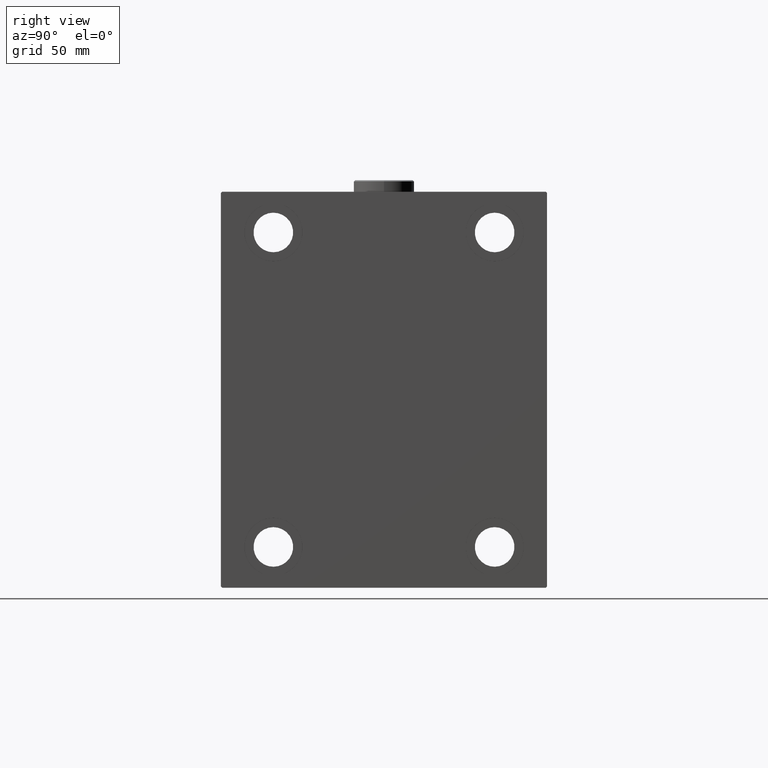
[diagram: clean part render]
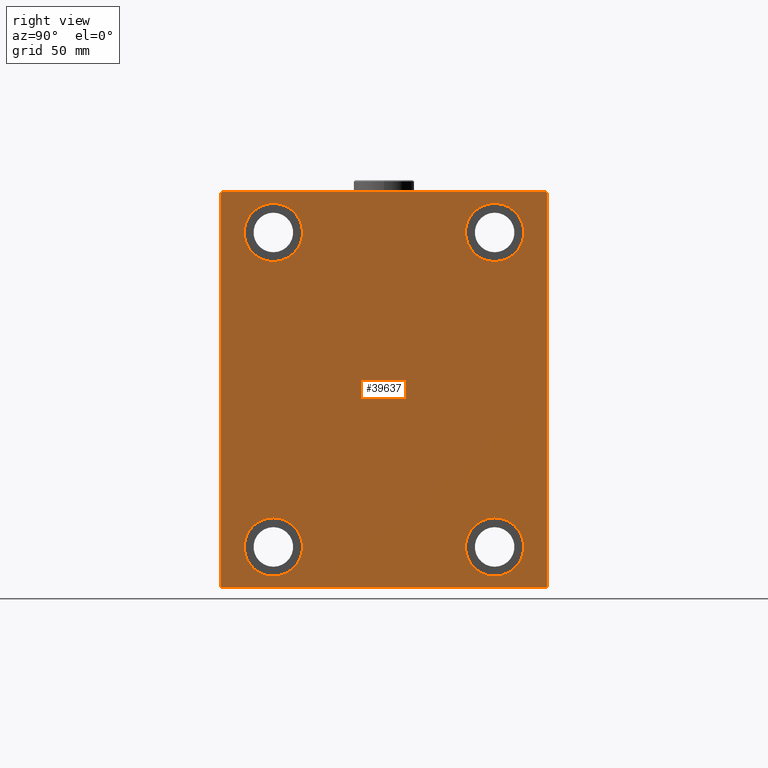
[diagram: same view with one face highlighted and labeled with its STEP entity id]
A machine part, right view. The second image highlights one B-rep face of the part: STEP entity #39637.
In plain terms, the highlighted planar face has unit normal (1, 0, 0).
Its self-contained STEP definition (entity closure, byte-faithful):
#452 = CARTESIAN_POINT ( 'NONE',  ( 205.0000000000000000, -47.49999999999997868, 55.00000000000000000 ) ) ;
#487 = VERTEX_POINT ( 'NONE', #3035 ) ;
#490 = CIRCLE ( 'NONE', #16582, 12.50000000000001066 ) ;
#533 = EDGE_CURVE ( 'NONE', #24624, #34609, #39510, .T. ) ;
#894 = LINE ( 'NONE', #1114, #36700 ) ;
#1114 = CARTESIAN_POINT ( 'NONE',  ( 205.0000000000000000, -77.25000000000292744, -77.24999999999650413 ) ) ;
#2462 = ORIENTED_EDGE ( 'NONE', *, *, #8759, .T. ) ;
#2726 = DIRECTION ( 'NONE',  ( -0.000000000000000000, -0.7071067811865376918, 0.7071067811865573427 ) ) ;
#3035 = CARTESIAN_POINT ( 'NONE',  ( 205.0000000000000000, -69.99999999999998579, -84.50000000000001421 ) ) ;
#3592 = CARTESIAN_POINT ( 'NONE',  ( 205.0000000000000000, -47.49999999999999289, -80.00000000000000000 ) ) ;
#3703 = DIRECTION ( 'NONE',  ( -1.000000000000000000, -0.000000000000000000, -0.000000000000000000 ) ) ;
#3973 = PLANE ( 'NONE',  #34445 ) ;
#4105 = CARTESIAN_POINT ( 'NONE',  ( 205.0000000000000000, 47.50000000000000711, -80.00000000000000000 ) ) ;
#4211 = ORIENTED_EDGE ( 'NONE', *, *, #28695, .T. ) ;
#4240 = EDGE_LOOP ( 'NONE', ( #34144, #10077 ) ) ;
#4858 = ORIENTED_EDGE ( 'NONE', *, *, #38573, .T. ) ;
#5338 = DIRECTION ( 'NONE',  ( -1.000000000000000000, -0.000000000000000000, -0.000000000000000000 ) ) ;
#5383 = VERTEX_POINT ( 'NONE', #31734 ) ;
#5625 = ORIENTED_EDGE ( 'NONE', *, *, #19336, .T. ) ;
#5680 = DIRECTION ( 'NONE',  ( -1.000000000000000000, -0.000000000000000000, -0.000000000000000000 ) ) ;
#6389 = DIRECTION ( 'NONE',  ( 0.000000000000000000, 0.000000000000000000, 1.000000000000000000 ) ) ;
#6583 = VERTEX_POINT ( 'NONE', #19487 ) ;
#6973 = DIRECTION ( 'NONE',  ( 0.000000000000000000, 0.000000000000000000, -1.000000000000000000 ) ) ;
#7817 = AXIS2_PLACEMENT_3D ( 'NONE', #11376, #11161, #21686 ) ;
#8574 = CARTESIAN_POINT ( 'NONE',  ( 205.0000000000000000, -69.99999999999998579, 84.49999999999998579 ) ) ;
#8729 = LINE ( 'NONE', #15613, #33597 ) ;
#8759 = EDGE_CURVE ( 'NONE', #487, #26874, #894, .T. ) ;
#9268 = CARTESIAN_POINT ( 'NONE',  ( 205.0000000000000000, -69.50000000000001421, -85.00000000000002842 ) ) ;
#9465 = VERTEX_POINT ( 'NONE', #452 ) ;
#10077 = ORIENTED_EDGE ( 'NONE', *, *, #36131, .T. ) ;
#10230 = ORIENTED_EDGE ( 'NONE', *, *, #41000, .T. ) ;
#10248 = CARTESIAN_POINT ( 'NONE',  ( 205.0000000000000000, -47.49999999999997868, 67.50000000000000000 ) ) ;
#10376 = VERTEX_POINT ( 'NONE', #8574 ) ;
#10636 = CARTESIAN_POINT ( 'NONE',  ( 205.0000000000000000, -77.24999999999612044, 77.25000000000468958 ) ) ;
#10650 = FACE_OUTER_BOUND ( 'NONE', #38257, .T. ) ;
#11048 = DIRECTION ( 'NONE',  ( 0.000000000000000000, 0.000000000000000000, 1.000000000000000000 ) ) ;
#11161 = DIRECTION ( 'NONE',  ( -1.000000000000000000, -0.000000000000000000, -0.000000000000000000 ) ) ;
#11376 = CARTESIAN_POINT ( 'NONE',  ( 205.0000000000000000, 47.50000000000000711, 67.50000000000000000 ) ) ;
#12656 = VERTEX_POINT ( 'NONE', #24457 ) ;
#12962 = VERTEX_POINT ( 'NONE', #26379 ) ;
#13185 = VERTEX_POINT ( 'NONE', #4105 ) ;
#13186 = AXIS2_PLACEMENT_3D ( 'NONE', #38110, #41318, #27797 ) ;
#14110 = CARTESIAN_POINT ( 'NONE',  ( 205.0000000000000000, -47.49999999999997868, 80.00000000000001421 ) ) ;
#14618 = AXIS2_PLACEMENT_3D ( 'NONE', #16662, #5680, #44627 ) ;
#14880 = DIRECTION ( 'NONE',  ( -0.000000000000000000, 0.7071067811865181518, -0.7071067811865769936 ) ) ;
#15085 = DIRECTION ( 'NONE',  ( 0.000000000000000000, 0.000000000000000000, -1.000000000000000000 ) ) ;
#15303 = VERTEX_POINT ( 'NONE', #43310 ) ;
#15613 = CARTESIAN_POINT ( 'NONE',  ( 205.0000000000000000, 77.24999999999907629, -77.25000000000120792 ) ) ;
#16080 = CIRCLE ( 'NONE', #14618, 12.49999999999999645 ) ;
#16425 = EDGE_CURVE ( 'NONE', #12962, #43995, #33468, .T. ) ;
#16437 = VECTOR ( 'NONE', #2726, 1000.000000000000114 ) ;
#16582 = AXIS2_PLACEMENT_3D ( 'NONE', #34894, #3703, #11048 ) ;
#16662 = CARTESIAN_POINT ( 'NONE',  ( 205.0000000000000000, -47.49999999999999289, -67.50000000000000000 ) ) ;
#16815 = VERTEX_POINT ( 'NONE', #24209 ) ;
#17372 = CARTESIAN_POINT ( 'NONE',  ( 205.0000000000000000, -47.49999999999997868, 67.50000000000000000 ) ) ;
#17738 = FACE_BOUND ( 'NONE', #19124, .T. ) ;
#18266 = AXIS2_PLACEMENT_3D ( 'NONE', #22522, #5338, #36511 ) ;
#19124 = EDGE_LOOP ( 'NONE', ( #43121, #10230 ) ) ;
#19201 = LINE ( 'NONE', #35730, #43900 ) ;
#19336 = EDGE_CURVE ( 'NONE', #43364, #10376, #42019, .T. ) ;
#19487 = CARTESIAN_POINT ( 'NONE',  ( 205.0000000000000000, 47.50000000000000711, -55.00000000000000711 ) ) ;
#20439 = CIRCLE ( 'NONE', #41675, 12.50000000000001066 ) ;
#21686 = DIRECTION ( 'NONE',  ( 0.000000000000000000, 0.000000000000000000, 1.000000000000000000 ) ) ;
#21841 = CARTESIAN_POINT ( 'NONE',  ( 205.0000000000000000, 0.000000000000000000, 0.000000000000000000 ) ) ;
#22030 = VECTOR ( 'NONE', #38883, 1000.000000000000000 ) ;
#22074 = CARTESIAN_POINT ( 'NONE',  ( 205.0000000000000000, -69.99999999999998579, -85.00000000000002842 ) ) ;
#22522 = CARTESIAN_POINT ( 'NONE',  ( 205.0000000000000000, 47.50000000000000711, -67.50000000000000000 ) ) ;
#22685 = VECTOR ( 'NONE', #42491, 1000.000000000000000 ) ;
#22975 = DIRECTION ( 'NONE',  ( -1.000000000000000000, -0.000000000000000000, -0.000000000000000000 ) ) ;
#23185 = CIRCLE ( 'NONE', #28315, 12.50000000000001066 ) ;
#23755 = EDGE_CURVE ( 'NONE', #9465, #25584, #23185, .T. ) ;
#23822 = EDGE_LOOP ( 'NONE', ( #4211, #43587 ) ) ;
#23990 = DIRECTION ( 'NONE',  ( 0.000000000000000000, 0.000000000000000000, 1.000000000000000000 ) ) ;
#24051 = EDGE_CURVE ( 'NONE', #16815, #12656, #490, .T. ) ;
#24209 = CARTESIAN_POINT ( 'NONE',  ( 205.0000000000000000, 47.50000000000000711, 80.00000000000001421 ) ) ;
#24220 = DIRECTION ( 'NONE',  ( -1.000000000000000000, -0.000000000000000000, -0.000000000000000000 ) ) ;
#24457 = CARTESIAN_POINT ( 'NONE',  ( 205.0000000000000000, 47.50000000000000711, 55.00000000000000000 ) ) ;
#24559 = EDGE_CURVE ( 'NONE', #15303, #12962, #26554, .T. ) ;
#24599 = DIRECTION ( 'NONE',  ( 0.000000000000000000, -0.7071067811865867636, -0.7071067811865081598 ) ) ;
#24624 = VERTEX_POINT ( 'NONE', #3592 ) ;
#25340 = CARTESIAN_POINT ( 'NONE',  ( 205.0000000000000000, 70.00000000000001421, 85.00000000000000000 ) ) ;
#25584 = VERTEX_POINT ( 'NONE', #14110 ) ;
#25633 = AXIS2_PLACEMENT_3D ( 'NONE', #40412, #22975, #34671 ) ;
#26379 = CARTESIAN_POINT ( 'NONE',  ( 205.0000000000000000, 70.00000000000001421, 84.50000000000004263 ) ) ;
#26554 = LINE ( 'NONE', #26996, #43682 ) ;
#26741 = VECTOR ( 'NONE', #24599, 1000.000000000000000 ) ;
#26874 = VERTEX_POINT ( 'NONE', #9268 ) ;
#26996 = CARTESIAN_POINT ( 'NONE',  ( 205.0000000000000000, 70.00000000000002842, -85.00000000000001421 ) ) ;
#27797 = DIRECTION ( 'NONE',  ( 0.000000000000000000, 0.000000000000000000, 1.000000000000000000 ) ) ;
#28315 = AXIS2_PLACEMENT_3D ( 'NONE', #10248, #24220, #23990 ) ;
#28501 = EDGE_LOOP ( 'NONE', ( #31566, #32446 ) ) ;
#28510 = LINE ( 'NONE', #22074, #22685 ) ;
#28695 = EDGE_CURVE ( 'NONE', #12656, #16815, #32686, .T. ) ;
#31270 = DIRECTION ( 'NONE',  ( 1.000000000000000000, 0.000000000000000000, 0.000000000000000000 ) ) ;
#31566 = ORIENTED_EDGE ( 'NONE', *, *, #41776, .T. ) ;
#31734 = CARTESIAN_POINT ( 'NONE',  ( 205.0000000000000000, 69.50000000000004263, -85.00000000000001421 ) ) ;
#31748 = CARTESIAN_POINT ( 'NONE',  ( 205.0000000000000000, -47.49999999999999289, -55.00000000000000711 ) ) ;
#32446 = ORIENTED_EDGE ( 'NONE', *, *, #41627, .T. ) ;
#32686 = CIRCLE ( 'NONE', #7817, 12.50000000000001066 ) ;
#33468 = LINE ( 'NONE', #40338, #16437 ) ;
#33596 = ORIENTED_EDGE ( 'NONE', *, *, #16425, .T. ) ;
#33597 = VECTOR ( 'NONE', #44253, 1000.000000000000114 ) ;
#33694 = CIRCLE ( 'NONE', #25633, 12.49999999999999645 ) ;
#33881 = DIRECTION ( 'NONE',  ( 0.000000000000000000, -8.163404592832031500E-17, 1.000000000000000000 ) ) ;
#34144 = ORIENTED_EDGE ( 'NONE', *, *, #23755, .T. ) ;
#34445 = AXIS2_PLACEMENT_3D ( 'NONE', #21841, #31270, #6973 ) ;
#34609 = VERTEX_POINT ( 'NONE', #31748 ) ;
#34671 = DIRECTION ( 'NONE',  ( 0.000000000000000000, 0.000000000000000000, 1.000000000000000000 ) ) ;
#34894 = CARTESIAN_POINT ( 'NONE',  ( 205.0000000000000000, 47.50000000000000711, 67.50000000000000000 ) ) ;
#34934 = FACE_BOUND ( 'NONE', #28501, .T. ) ;
#34964 = EDGE_CURVE ( 'NONE', #5383, #15303, #8729, .T. ) ;
#35730 = CARTESIAN_POINT ( 'NONE',  ( 205.0000000000000000, -69.99999999999998579, 84.99999999999998579 ) ) ;
#36131 = EDGE_CURVE ( 'NONE', #25584, #9465, #20439, .T. ) ;
#36511 = DIRECTION ( 'NONE',  ( 0.000000000000000000, 0.000000000000000000, 1.000000000000000000 ) ) ;
#36700 = VECTOR ( 'NONE', #14880, 1000.000000000000000 ) ;
#37324 = CIRCLE ( 'NONE', #18266, 12.49999999999999645 ) ;
#37519 = ORIENTED_EDGE ( 'NONE', *, *, #44400, .T. ) ;
#37788 = DIRECTION ( 'NONE',  ( -1.000000000000000000, -0.000000000000000000, -0.000000000000000000 ) ) ;
#38110 = CARTESIAN_POINT ( 'NONE',  ( 205.0000000000000000, -47.49999999999999289, -67.50000000000000000 ) ) ;
#38257 = EDGE_LOOP ( 'NONE', ( #37519, #5625, #44966, #2462, #4858, #40173, #40469, #33596 ) ) ;
#38262 = CARTESIAN_POINT ( 'NONE',  ( 205.0000000000000000, 69.50000000000007105, 85.00000000000000000 ) ) ;
#38573 = EDGE_CURVE ( 'NONE', #26874, #5383, #28510, .T. ) ;
#38883 = DIRECTION ( 'NONE',  ( 0.000000000000000000, -1.000000000000000000, -9.912705577010325549E-17 ) ) ;
#39267 = FACE_BOUND ( 'NONE', #23822, .T. ) ;
#39510 = CIRCLE ( 'NONE', #13186, 12.49999999999999645 ) ;
#39637 = ADVANCED_FACE ( 'NONE', ( #34934, #42704, #39267, #17738, #10650 ), #3973, .T. ) ;
#40047 = CARTESIAN_POINT ( 'NONE',  ( 205.0000000000000000, -69.49999999999994316, 84.99999999999998579 ) ) ;
#40173 = ORIENTED_EDGE ( 'NONE', *, *, #34964, .T. ) ;
#40338 = CARTESIAN_POINT ( 'NONE',  ( 205.0000000000000000, 77.25000000000100897, 77.24999999999886313 ) ) ;
#40412 = CARTESIAN_POINT ( 'NONE',  ( 205.0000000000000000, 47.50000000000000711, -67.50000000000000000 ) ) ;
#40469 = ORIENTED_EDGE ( 'NONE', *, *, #24559, .T. ) ;
#40947 = EDGE_CURVE ( 'NONE', #10376, #487, #19201, .T. ) ;
#41000 = EDGE_CURVE ( 'NONE', #34609, #24624, #16080, .T. ) ;
#41318 = DIRECTION ( 'NONE',  ( -1.000000000000000000, -0.000000000000000000, -0.000000000000000000 ) ) ;
#41627 = EDGE_CURVE ( 'NONE', #6583, #13185, #37324, .T. ) ;
#41675 = AXIS2_PLACEMENT_3D ( 'NONE', #17372, #37788, #6389 ) ;
#41776 = EDGE_CURVE ( 'NONE', #13185, #6583, #33694, .T. ) ;
#42019 = LINE ( 'NONE', #10636, #26741 ) ;
#42315 = LINE ( 'NONE', #25340, #22030 ) ;
#42491 = DIRECTION ( 'NONE',  ( 0.000000000000000000, 1.000000000000000000, 9.912705577010325549E-17 ) ) ;
#42704 = FACE_BOUND ( 'NONE', #4240, .T. ) ;
#43121 = ORIENTED_EDGE ( 'NONE', *, *, #533, .T. ) ;
#43310 = CARTESIAN_POINT ( 'NONE',  ( 205.0000000000000000, 70.00000000000002842, -84.50000000000004263 ) ) ;
#43364 = VERTEX_POINT ( 'NONE', #40047 ) ;
#43587 = ORIENTED_EDGE ( 'NONE', *, *, #24051, .T. ) ;
#43682 = VECTOR ( 'NONE', #33881, 1000.000000000000000 ) ;
#43900 = VECTOR ( 'NONE', #15085, 1000.000000000000000 ) ;
#43995 = VERTEX_POINT ( 'NONE', #38262 ) ;
#44253 = DIRECTION ( 'NONE',  ( -0.000000000000000000, 0.7071067811865573427, 0.7071067811865376918 ) ) ;
#44400 = EDGE_CURVE ( 'NONE', #43995, #43364, #42315, .T. ) ;
#44627 = DIRECTION ( 'NONE',  ( 0.000000000000000000, 0.000000000000000000, 1.000000000000000000 ) ) ;
#44966 = ORIENTED_EDGE ( 'NONE', *, *, #40947, .T. ) ;